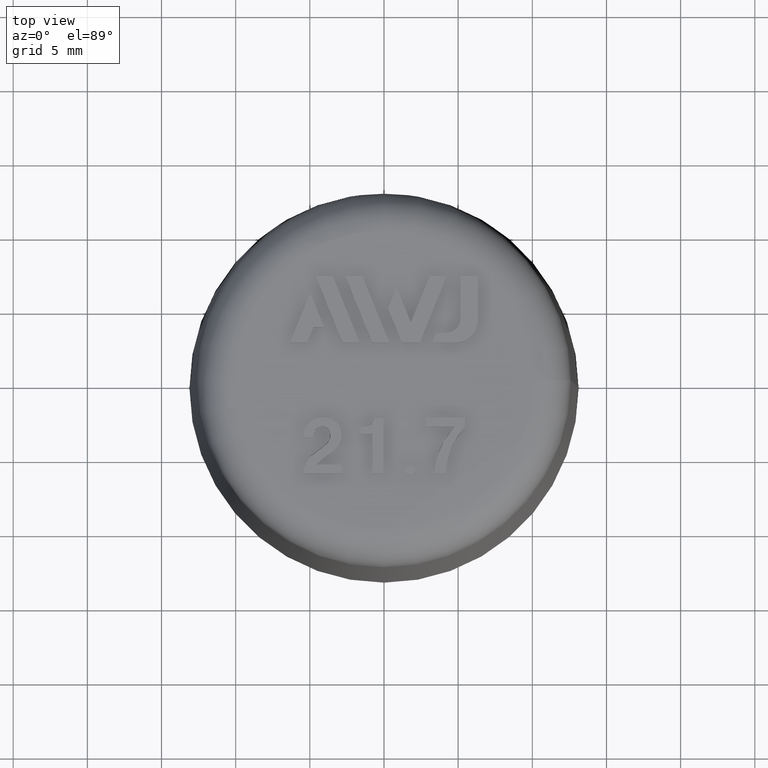
[diagram: clean part render]
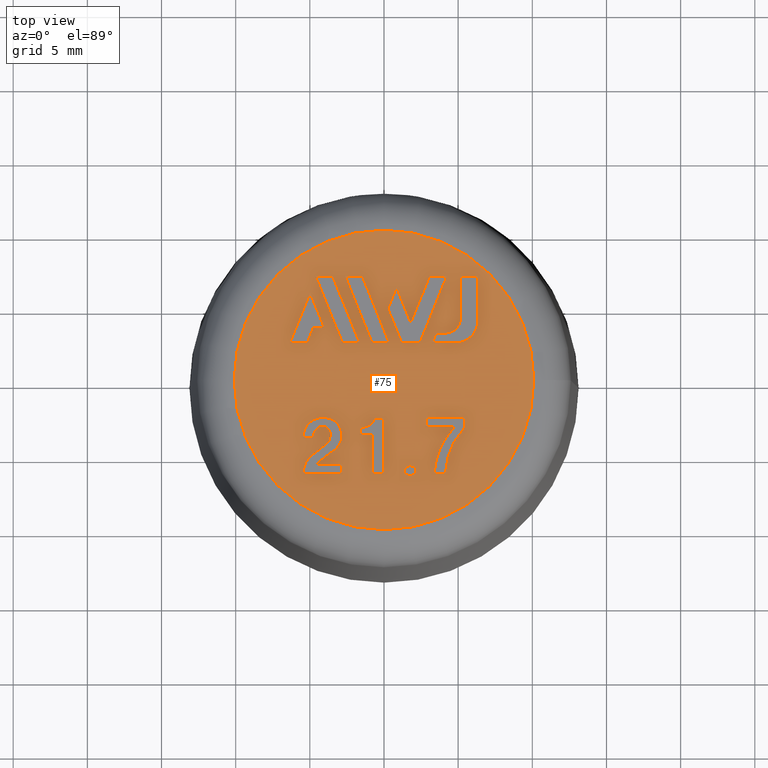
[diagram: same view with one face highlighted and labeled with its STEP entity id]
A machine part, top view. The second image highlights one B-rep face of the part: STEP entity #75.
In plain terms, the highlighted planar face has unit normal (0, 0, -1).
Its self-contained STEP definition (entity closure, byte-faithful):
#75 = ADVANCED_FACE( '', ( #141, #142, #143, #144, #145, #146, #147, #148, #149, #150 ), #151, .F. );
#141 = FACE_BOUND( '', #286, .T. );
#142 = FACE_BOUND( '', #287, .T. );
#143 = FACE_BOUND( '', #288, .T. );
#144 = FACE_BOUND( '', #289, .T. );
#145 = FACE_BOUND( '', #290, .T. );
#146 = FACE_BOUND( '', #291, .T. );
#147 = FACE_OUTER_BOUND( '', #292, .T. );
#148 = FACE_BOUND( '', #293, .T. );
#149 = FACE_BOUND( '', #294, .T. );
#150 = FACE_BOUND( '', #295, .T. );
#151 = PLANE( '', #296 );
#286 = EDGE_LOOP( '', ( #437, #438, #439, #440, #441, #442, #443 ) );
#287 = EDGE_LOOP( '', ( #444 ) );
#288 = EDGE_LOOP( '', ( #445, #446, #447, #448, #449, #450, #451 ) );
#289 = EDGE_LOOP( '', ( #452, #453, #454, #455, #456, #457 ) );
#290 = EDGE_LOOP( '', ( #458, #459, #460, #461 ) );
#291 = EDGE_LOOP( '', ( #462, #463, #464, #465, #466, #467, #468 ) );
#292 = EDGE_LOOP( '', ( #469 ) );
#293 = EDGE_LOOP( '', ( #470, #471, #472, #473, #474, #475, #476, #477 ) );
#294 = EDGE_LOOP( '', ( #478, #479, #480, #481 ) );
#295 = EDGE_LOOP( '', ( #482, #483, #484, #485, #486 ) );
#296 = AXIS2_PLACEMENT_3D( '', #487, #488, #489 );
#437 = ORIENTED_EDGE( '', *, *, #982, .T. );
#438 = ORIENTED_EDGE( '', *, *, #983, .T. );
#439 = ORIENTED_EDGE( '', *, *, #984, .T. );
#440 = ORIENTED_EDGE( '', *, *, #985, .T. );
#441 = ORIENTED_EDGE( '', *, *, #986, .T. );
#442 = ORIENTED_EDGE( '', *, *, #987, .T. );
#443 = ORIENTED_EDGE( '', *, *, #988, .T. );
#444 = ORIENTED_EDGE( '', *, *, #989, .T. );
#445 = ORIENTED_EDGE( '', *, *, #990, .T. );
#446 = ORIENTED_EDGE( '', *, *, #991, .T. );
#447 = ORIENTED_EDGE( '', *, *, #992, .T. );
#448 = ORIENTED_EDGE( '', *, *, #993, .T. );
#449 = ORIENTED_EDGE( '', *, *, #994, .T. );
#450 = ORIENTED_EDGE( '', *, *, #995, .T. );
#451 = ORIENTED_EDGE( '', *, *, #996, .T. );
#452 = ORIENTED_EDGE( '', *, *, #997, .T. );
#453 = ORIENTED_EDGE( '', *, *, #998, .T. );
#454 = ORIENTED_EDGE( '', *, *, #999, .T. );
#455 = ORIENTED_EDGE( '', *, *, #1000, .T. );
#456 = ORIENTED_EDGE( '', *, *, #1001, .T. );
#457 = ORIENTED_EDGE( '', *, *, #1002, .T. );
#458 = ORIENTED_EDGE( '', *, *, #1003, .F. );
#459 = ORIENTED_EDGE( '', *, *, #1004, .F. );
#460 = ORIENTED_EDGE( '', *, *, #1005, .F. );
#461 = ORIENTED_EDGE( '', *, *, #1006, .F. );
#462 = ORIENTED_EDGE( '', *, *, #1007, .F. );
#463 = ORIENTED_EDGE( '', *, *, #1008, .F. );
#464 = ORIENTED_EDGE( '', *, *, #1009, .F. );
#465 = ORIENTED_EDGE( '', *, *, #1010, .F. );
#466 = ORIENTED_EDGE( '', *, *, #1011, .F. );
#467 = ORIENTED_EDGE( '', *, *, #1012, .F. );
#468 = ORIENTED_EDGE( '', *, *, #1013, .F. );
#469 = ORIENTED_EDGE( '', *, *, #1014, .T. );
#470 = ORIENTED_EDGE( '', *, *, #1015, .F. );
#471 = ORIENTED_EDGE( '', *, *, #1016, .F. );
#472 = ORIENTED_EDGE( '', *, *, #1017, .F. );
#473 = ORIENTED_EDGE( '', *, *, #1018, .F. );
#474 = ORIENTED_EDGE( '', *, *, #1019, .F. );
#475 = ORIENTED_EDGE( '', *, *, #1020, .F. );
#476 = ORIENTED_EDGE( '', *, *, #1021, .F. );
#477 = ORIENTED_EDGE( '', *, *, #1022, .F. );
#478 = ORIENTED_EDGE( '', *, *, #1023, .F. );
#479 = ORIENTED_EDGE( '', *, *, #1024, .F. );
#480 = ORIENTED_EDGE( '', *, *, #1025, .F. );
#481 = ORIENTED_EDGE( '', *, *, #1026, .F. );
#482 = ORIENTED_EDGE( '', *, *, #1027, .F. );
#483 = ORIENTED_EDGE( '', *, *, #1028, .F. );
#484 = ORIENTED_EDGE( '', *, *, #1029, .F. );
#485 = ORIENTED_EDGE( '', *, *, #1030, .F. );
#486 = ORIENTED_EDGE( '', *, *, #1031, .F. );
#487 = CARTESIAN_POINT( '', ( -1.95937016611580E-015, 10.0968253945189, 32.0000000000000 ) );
#488 = DIRECTION( '', ( 6.12303176911189E-017, 0.000000000000000, -1.00000000000000 ) );
#489 = DIRECTION( '', ( -1.00000000000000, 0.000000000000000, -6.12303176911189E-017 ) );
#982 = EDGE_CURVE( '', #1134, #1135, #1136, .T. );
#983 = EDGE_CURVE( '', #1135, #1137, #1138, .T. );
#984 = EDGE_CURVE( '', #1137, #1139, #1140, .T. );
#985 = EDGE_CURVE( '', #1139, #1141, #1142, .T. );
#986 = EDGE_CURVE( '', #1141, #1143, #1144, .T. );
#987 = EDGE_CURVE( '', #1143, #1145, #1146, .T. );
#988 = EDGE_CURVE( '', #1145, #1134, #1147, .T. );
#989 = EDGE_CURVE( '', #1148, #1148, #1149, .T. );
#990 = EDGE_CURVE( '', #1150, #1151, #1152, .T. );
#991 = EDGE_CURVE( '', #1151, #1153, #1154, .T. );
#992 = EDGE_CURVE( '', #1153, #1155, #1156, .T. );
#993 = EDGE_CURVE( '', #1155, #1157, #1158, .T. );
#994 = EDGE_CURVE( '', #1157, #1159, #1160, .T. );
#995 = EDGE_CURVE( '', #1159, #1161, #1162, .T. );
#996 = EDGE_CURVE( '', #1161, #1150, #1163, .T. );
#997 = EDGE_CURVE( '', #1164, #1165, #1166, .T. );
#998 = EDGE_CURVE( '', #1165, #1167, #1168, .T. );
#999 = EDGE_CURVE( '', #1167, #1169, #1170, .T. );
#1000 = EDGE_CURVE( '', #1169, #1171, #1172, .T. );
#1001 = EDGE_CURVE( '', #1171, #1173, #1174, .T. );
#1002 = EDGE_CURVE( '', #1173, #1164, #1175, .T. );
#1003 = EDGE_CURVE( '', #1176, #1177, #1178, .T. );
#1004 = EDGE_CURVE( '', #1179, #1176, #1180, .T. );
#1005 = EDGE_CURVE( '', #1181, #1179, #1182, .T. );
#1006 = EDGE_CURVE( '', #1177, #1181, #1183, .T. );
#1007 = EDGE_CURVE( '', #1184, #1185, #1186, .T. );
#1008 = EDGE_CURVE( '', #1187, #1184, #1188, .T. );
#1009 = EDGE_CURVE( '', #1189, #1187, #1190, .T. );
#1010 = EDGE_CURVE( '', #1191, #1189, #1192, .T. );
#1011 = EDGE_CURVE( '', #1193, #1191, #1194, .T. );
#1012 = EDGE_CURVE( '', #1195, #1193, #1196, .T. );
#1013 = EDGE_CURVE( '', #1185, #1195, #1197, .T. );
#1014 = EDGE_CURVE( '', #1198, #1198, #1199, .T. );
#1015 = EDGE_CURVE( '', #1200, #1201, #1202, .T. );
#1016 = EDGE_CURVE( '', #1203, #1200, #1204, .T. );
#1017 = EDGE_CURVE( '', #1205, #1203, #1206, .T. );
#1018 = EDGE_CURVE( '', #1207, #1205, #1208, .T. );
#1019 = EDGE_CURVE( '', #1209, #1207, #1210, .T. );
#1020 = EDGE_CURVE( '', #1211, #1209, #1212, .T. );
#1021 = EDGE_CURVE( '', #1213, #1211, #1214, .T. );
#1022 = EDGE_CURVE( '', #1201, #1213, #1215, .T. );
#1023 = EDGE_CURVE( '', #1216, #1217, #1218, .T. );
#1024 = EDGE_CURVE( '', #1219, #1216, #1220, .T. );
#1025 = EDGE_CURVE( '', #1221, #1219, #1222, .T. );
#1026 = EDGE_CURVE( '', #1217, #1221, #1223, .T. );
#1027 = EDGE_CURVE( '', #1224, #1225, #1226, .T. );
#1028 = EDGE_CURVE( '', #1227, #1224, #1228, .T. );
#1029 = EDGE_CURVE( '', #1229, #1227, #1230, .T. );
#1030 = EDGE_CURVE( '', #1231, #1229, #1232, .T. );
#1031 = EDGE_CURVE( '', #1225, #1231, #1233, .T. );
#1134 = VERTEX_POINT( '', #1390 );
#1135 = VERTEX_POINT( '', #1391 );
#1136 = B_SPLINE_CURVE_WITH_KNOTS( '', 2, ( #1392, #1393, #1394 ), .UNSPECIFIED., .F., .F., ( 3, 3 ), ( 8.00000000000000, 9.00000000000000 ), .UNSPECIFIED. );
#1137 = VERTEX_POINT( '', #1395 );
#1138 = B_SPLINE_CURVE_WITH_KNOTS( '', 2, ( #1396, #1397, #1398 ), .UNSPECIFIED., .F., .F., ( 3, 3 ), ( 0.000000000000000, 1.00000000000000 ), .UNSPECIFIED. );
#1139 = VERTEX_POINT( '', #1399 );
#1140 = B_SPLINE_CURVE_WITH_KNOTS( '', 2, ( #1400, #1401, #1402 ), .UNSPECIFIED., .F., .F., ( 3, 3 ), ( 1.00000000000000, 2.00000000000000 ), .UNSPECIFIED. );
#1141 = VERTEX_POINT( '', #1403 );
#1142 = B_SPLINE_CURVE_WITH_KNOTS( '', 2, ( #1404, #1405, #1406 ), .UNSPECIFIED., .F., .F., ( 3, 3 ), ( 2.00000000000000, 3.00000000000000 ), .UNSPECIFIED. );
#1143 = VERTEX_POINT( '', #1407 );
#1144 = B_SPLINE_CURVE_WITH_KNOTS( '', 2, ( #1408, #1409, #1410, #1411, #1412 ), .UNSPECIFIED., .F., .F., ( 3, 2, 3 ), ( 3.00000000000000, 4.00000000000000, 5.00000000000000 ), .UNSPECIFIED. );
#1145 = VERTEX_POINT( '', #1413 );
#1146 = B_SPLINE_CURVE_WITH_KNOTS( '', 2, ( #1414, #1415, #1416 ), .UNSPECIFIED., .F., .F., ( 3, 3 ), ( 5.00000000000000, 6.00000000000000 ), .UNSPECIFIED. );
#1147 = B_SPLINE_CURVE_WITH_KNOTS( '', 2, ( #1417, #1418, #1419, #1420, #1421 ), .UNSPECIFIED., .F., .F., ( 3, 2, 3 ), ( 6.00000000000000, 7.00000000000000, 8.00000000000000 ), .UNSPECIFIED. );
#1148 = VERTEX_POINT( '', #1422 );
#1149 = B_SPLINE_CURVE_WITH_KNOTS( '', 2, ( #1423, #1424, #1425, #1426, #1427, #1428, #1429, #1430, #1431, #1432, #1433, #1434, #1435, #1436, #1437, #1438, #1439 ), .UNSPECIFIED., .T., .F., ( 3, 2, 2, 2, 2, 2, 2, 2, 3 ), ( 0.000000000000000, 1.00000000000000, 2.00000000000000, 3.00000000000000, 4.00000000000000, 5.00000000000000, 6.00000000000000, 7.00000000000000, 8.00000000000000 ), .UNSPECIFIED. );
#1150 = VERTEX_POINT( '', #1440 );
#1151 = VERTEX_POINT( '', #1441 );
#1152 = B_SPLINE_CURVE_WITH_KNOTS( '', 2, ( #1442, #1443, #1444 ), .UNSPECIFIED., .F., .F., ( 3, 3 ), ( 7.00000000000000, 8.00000000000000 ), .UNSPECIFIED. );
#1153 = VERTEX_POINT( '', #1445 );
#1154 = B_SPLINE_CURVE_WITH_KNOTS( '', 2, ( #1446, #1447, #1448 ), .UNSPECIFIED., .F., .F., ( 3, 3 ), ( 0.000000000000000, 1.00000000000000 ), .UNSPECIFIED. );
#1155 = VERTEX_POINT( '', #1449 );
#1156 = B_SPLINE_CURVE_WITH_KNOTS( '', 2, ( #1450, #1451, #1452, #1453, #1454 ), .UNSPECIFIED., .F., .F., ( 3, 2, 3 ), ( 1.00000000000000, 2.00000000000000, 3.00000000000000 ), .UNSPECIFIED. );
#1157 = VERTEX_POINT( '', #1455 );
#1158 = B_SPLINE_CURVE_WITH_KNOTS( '', 2, ( #1456, #1457, #1458 ), .UNSPECIFIED., .F., .F., ( 3, 3 ), ( 3.00000000000000, 4.00000000000000 ), .UNSPECIFIED. );
#1159 = VERTEX_POINT( '', #1459 );
#1160 = B_SPLINE_CURVE_WITH_KNOTS( '', 2, ( #1460, #1461, #1462 ), .UNSPECIFIED., .F., .F., ( 3, 3 ), ( 4.00000000000000, 5.00000000000000 ), .UNSPECIFIED. );
#1161 = VERTEX_POINT( '', #1463 );
#1162 = B_SPLINE_CURVE_WITH_KNOTS( '', 2, ( #1464, #1465, #1466 ), .UNSPECIFIED., .F., .F., ( 3, 3 ), ( 5.00000000000000, 6.00000000000000 ), .UNSPECIFIED. );
#1163 = B_SPLINE_CURVE_WITH_KNOTS( '', 2, ( #1467, #1468, #1469 ), .UNSPECIFIED., .F., .F., ( 3, 3 ), ( 6.00000000000000, 7.00000000000000 ), .UNSPECIFIED. );
#1164 = VERTEX_POINT( '', #1470 );
#1165 = VERTEX_POINT( '', #1471 );
#1166 = B_SPLINE_CURVE_WITH_KNOTS( '', 2, ( #1472, #1473, #1474 ), .UNSPECIFIED., .F., .F., ( 3, 3 ), ( 15.0000000000000, 16.0000000000000 ), .UNSPECIFIED. );
#1167 = VERTEX_POINT( '', #1475 );
#1168 = B_SPLINE_CURVE_WITH_KNOTS( '', 2, ( #1476, #1477, #1478, #1479, #1480, #1481, #1482, #1483, #1484, #1485, #1486, #1487, #1488 ), .UNSPECIFIED., .F., .F., ( 3, 2, 2, 2, 2, 2, 3 ), ( 0.000000000000000, 1.00000000000000, 2.00000000000000, 3.00000000000000, 4.00000000000000, 5.00000000000000, 6.00000000000000 ), .UNSPECIFIED. );
#1169 = VERTEX_POINT( '', #1489 );
#1170 = B_SPLINE_CURVE_WITH_KNOTS( '', 2, ( #1490, #1491, #1492 ), .UNSPECIFIED., .F., .F., ( 3, 3 ), ( 6.00000000000000, 7.00000000000000 ), .UNSPECIFIED. );
#1171 = VERTEX_POINT( '', #1493 );
#1172 = B_SPLINE_CURVE_WITH_KNOTS( '', 2, ( #1494, #1495, #1496 ), .UNSPECIFIED., .F., .F., ( 3, 3 ), ( 7.00000000000000, 8.00000000000000 ), .UNSPECIFIED. );
#1173 = VERTEX_POINT( '', #1497 );
#1174 = B_SPLINE_CURVE_WITH_KNOTS( '', 2, ( #1498, #1499, #1500 ), .UNSPECIFIED., .F., .F., ( 3, 3 ), ( 8.00000000000000, 9.00000000000000 ), .UNSPECIFIED. );
#1175 = B_SPLINE_CURVE_WITH_KNOTS( '', 2, ( #1501, #1502, #1503, #1504, #1505, #1506, #1507, #1508, #1509, #1510, #1511, #1512, #1513 ), .UNSPECIFIED., .F., .F., ( 3, 2, 2, 2, 2, 2, 3 ), ( 9.00000000000000, 10.0000000000000, 11.0000000000000, 12.0000000000000, 13.0000000000000, 14.0000000000000, 15.0000000000000 ), .UNSPECIFIED. );
#1176 = VERTEX_POINT( '', #1514 );
#1177 = VERTEX_POINT( '', #1515 );
#1178 = LINE( '', #1516, #1517 );
#1179 = VERTEX_POINT( '', #1518 );
#1180 = LINE( '', #1519, #1520 );
#1181 = VERTEX_POINT( '', #1521 );
#1182 = LINE( '', #1522, #1523 );
#1183 = LINE( '', #1524, #1525 );
#1184 = VERTEX_POINT( '', #1526 );
#1185 = VERTEX_POINT( '', #1527 );
#1186 = LINE( '', #1528, #1529 );
#1187 = VERTEX_POINT( '', #1530 );
#1188 = LINE( '', #1531, #1532 );
#1189 = VERTEX_POINT( '', #1533 );
#1190 = LINE( '', #1534, #1535 );
#1191 = VERTEX_POINT( '', #1536 );
#1192 = LINE( '', #1537, #1538 );
#1193 = VERTEX_POINT( '', #1539 );
#1194 = LINE( '', #1540, #1541 );
#1195 = VERTEX_POINT( '', #1542 );
#1196 = LINE( '', #1543, #1544 );
#1197 = LINE( '', #1545, #1546 );
#1198 = VERTEX_POINT( '', #1547 );
#1199 = CIRCLE( '', #1548, 10.0968253945189 );
#1200 = VERTEX_POINT( '', #1549 );
#1201 = VERTEX_POINT( '', #1550 );
#1202 = LINE( '', #1551, #1552 );
#1203 = VERTEX_POINT( '', #1553 );
#1204 = LINE( '', #1554, #1555 );
#1205 = VERTEX_POINT( '', #1556 );
#1206 = LINE( '', #1557, #1558 );
#1207 = VERTEX_POINT( '', #1559 );
#1208 = CIRCLE( '', #1560, 1.50000000000000 );
#1209 = VERTEX_POINT( '', #1561 );
#1210 = LINE( '', #1562, #1563 );
#1211 = VERTEX_POINT( '', #1564 );
#1212 = LINE( '', #1565, #1566 );
#1213 = VERTEX_POINT( '', #1567 );
#1214 = LINE( '', #1568, #1569 );
#1215 = CIRCLE( '', #1570, 1.00000000000000 );
#1216 = VERTEX_POINT( '', #1571 );
#1217 = VERTEX_POINT( '', #1572 );
#1218 = LINE( '', #1573, #1574 );
#1219 = VERTEX_POINT( '', #1575 );
#1220 = LINE( '', #1576, #1577 );
#1221 = VERTEX_POINT( '', #1578 );
#1222 = LINE( '', #1579, #1580 );
#1223 = LINE( '', #1581, #1582 );
#1224 = VERTEX_POINT( '', #1583 );
#1225 = VERTEX_POINT( '', #1584 );
#1226 = LINE( '', #1585, #1586 );
#1227 = VERTEX_POINT( '', #1587 );
#1228 = LINE( '', #1588, #1589 );
#1229 = VERTEX_POINT( '', #1590 );
#1230 = LINE( '', #1591, #1592 );
#1231 = VERTEX_POINT( '', #1593 );
#1232 = LINE( '', #1594, #1595 );
#1233 = LINE( '', #1596, #1597 );
#1390 = CARTESIAN_POINT( '', ( 4.74545454545454, -3.16226031983528, 32.0000000000000 ) );
#1391 = CARTESIAN_POINT( '', ( 2.82545454545454, -3.16226031983528, 32.0000000000000 ) );
#1392 = CARTESIAN_POINT( '', ( 4.74545454545454, -3.16226031983528, 32.0000000000000 ) );
#1393 = CARTESIAN_POINT( '', ( 3.78545454545454, -3.16226031983528, 32.0000000000000 ) );
#1394 = CARTESIAN_POINT( '', ( 2.82545454545454, -3.16226031983528, 32.0000000000000 ) );
#1395 = CARTESIAN_POINT( '', ( 2.82545454545454, -2.56226031983528, 32.0000000000000 ) );
#1396 = CARTESIAN_POINT( '', ( 2.82545454545454, -3.16226031983528, 32.0000000000000 ) );
#1397 = CARTESIAN_POINT( '', ( 2.82545454545454, -2.86226031983528, 32.0000000000000 ) );
#1398 = CARTESIAN_POINT( '', ( 2.82545454545454, -2.56226031983528, 32.0000000000000 ) );
#1399 = CARTESIAN_POINT( '', ( 5.44363636363636, -2.56226031983528, 32.0000000000000 ) );
#1400 = CARTESIAN_POINT( '', ( 2.82545454545454, -2.56226031983528, 32.0000000000000 ) );
#1401 = CARTESIAN_POINT( '', ( 4.13454545454545, -2.56226031983528, 32.0000000000000 ) );
#1402 = CARTESIAN_POINT( '', ( 5.44363636363636, -2.56226031983528, 32.0000000000000 ) );
#1403 = CARTESIAN_POINT( '', ( 5.44363636363636, -3.19862395619891, 32.0000000000000 ) );
#1404 = CARTESIAN_POINT( '', ( 5.44363636363636, -2.56226031983528, 32.0000000000000 ) );
#1405 = CARTESIAN_POINT( '', ( 5.44363636363636, -2.88044213801709, 32.0000000000000 ) );
#1406 = CARTESIAN_POINT( '', ( 5.44363636363636, -3.19862395619891, 32.0000000000000 ) );
#1407 = CARTESIAN_POINT( '', ( 4.13454545454545, -6.34407850165346, 32.0000000000000 ) );
#1408 = CARTESIAN_POINT( '', ( 5.44363636363636, -3.19862395619891, 32.0000000000000 ) );
#1409 = CARTESIAN_POINT( '', ( 4.76727272727272, -3.98044213801710, 32.0000000000000 ) );
#1410 = CARTESIAN_POINT( '', ( 4.48363636363636, -4.68953304710800, 32.0000000000000 ) );
#1411 = CARTESIAN_POINT( '', ( 4.20000000000000, -5.39862395619891, 32.0000000000000 ) );
#1412 = CARTESIAN_POINT( '', ( 4.13454545454545, -6.34407850165346, 32.0000000000000 ) );
#1413 = CARTESIAN_POINT( '', ( 3.37090909090909, -6.34407850165346, 32.0000000000000 ) );
#1414 = CARTESIAN_POINT( '', ( 4.13454545454545, -6.34407850165346, 32.0000000000000 ) );
#1415 = CARTESIAN_POINT( '', ( 3.75272727272727, -6.34407850165346, 32.0000000000000 ) );
#1416 = CARTESIAN_POINT( '', ( 3.37090909090909, -6.34407850165346, 32.0000000000000 ) );
#1417 = CARTESIAN_POINT( '', ( 3.37090909090909, -6.34407850165346, 32.0000000000000 ) );
#1418 = CARTESIAN_POINT( '', ( 3.50181818181818, -5.25316941074437, 32.0000000000000 ) );
#1419 = CARTESIAN_POINT( '', ( 3.80854440019129, -4.58102245072923, 32.0000000000000 ) );
#1420 = CARTESIAN_POINT( '', ( 4.09090909090909, -3.96226031983528, 32.0000000000000 ) );
#1421 = CARTESIAN_POINT( '', ( 4.74545454545454, -3.16226031983528, 32.0000000000000 ) );
#1422 = CARTESIAN_POINT( '', ( 1.75636363636363, -5.79862395619891, 32.0000000000000 ) );
#1423 = CARTESIAN_POINT( '', ( 1.75636363636363, -5.79862395619891, 32.0000000000000 ) );
#1424 = CARTESIAN_POINT( '', ( 1.90909090909091, -5.79862395619891, 32.0000000000000 ) );
#1425 = CARTESIAN_POINT( '', ( 2.04000000000000, -5.90771486528982, 32.0000000000000 ) );
#1426 = CARTESIAN_POINT( '', ( 2.14909090909091, -5.99862395619891, 32.0000000000000 ) );
#1427 = CARTESIAN_POINT( '', ( 2.14909090909091, -6.12589668347164, 32.0000000000000 ) );
#1428 = CARTESIAN_POINT( '', ( 2.14909090909091, -6.25316941074437, 32.0000000000000 ) );
#1429 = CARTESIAN_POINT( '', ( 2.04000000000000, -6.34407850165346, 32.0000000000000 ) );
#1430 = CARTESIAN_POINT( '', ( 1.90909090909091, -6.45316941074437, 32.0000000000000 ) );
#1431 = CARTESIAN_POINT( '', ( 1.75636363636363, -6.45316941074437, 32.0000000000000 ) );
#1432 = CARTESIAN_POINT( '', ( 1.60363636363636, -6.45316941074437, 32.0000000000000 ) );
#1433 = CARTESIAN_POINT( '', ( 1.47272727272727, -6.34407850165346, 32.0000000000000 ) );
#1434 = CARTESIAN_POINT( '', ( 1.36363636363636, -6.25316941074437, 32.0000000000000 ) );
#1435 = CARTESIAN_POINT( '', ( 1.36363636363636, -6.12589668347164, 32.0000000000000 ) );
#1436 = CARTESIAN_POINT( '', ( 1.36363636363636, -5.99862395619891, 32.0000000000000 ) );
#1437 = CARTESIAN_POINT( '', ( 1.47272727272727, -5.90771486528982, 32.0000000000000 ) );
#1438 = CARTESIAN_POINT( '', ( 1.60363636363636, -5.79862395619891, 32.0000000000000 ) );
#1439 = CARTESIAN_POINT( '', ( 1.75636363636363, -5.79862395619891, 32.0000000000000 ) );
#1440 = CARTESIAN_POINT( '', ( -0.774545454545458, -3.67135122892618, 32.0000000000000 ) );
#1441 = CARTESIAN_POINT( '', ( -1.62545454545455, -3.67135122892618, 32.0000000000000 ) );
#1442 = CARTESIAN_POINT( '', ( -0.774545454545458, -3.67135122892618, 32.0000000000000 ) );
#1443 = CARTESIAN_POINT( '', ( -1.20000000000000, -3.67135122892618, 32.0000000000000 ) );
#1444 = CARTESIAN_POINT( '', ( -1.62545454545455, -3.67135122892618, 32.0000000000000 ) );
#1445 = CARTESIAN_POINT( '', ( -1.62545454545455, -3.21680577438073, 32.0000000000000 ) );
#1446 = CARTESIAN_POINT( '', ( -1.62545454545455, -3.67135122892618, 32.0000000000000 ) );
#1447 = CARTESIAN_POINT( '', ( -1.62545454545455, -3.44407850165346, 32.0000000000000 ) );
#1448 = CARTESIAN_POINT( '', ( -1.62545454545455, -3.21680577438073, 32.0000000000000 ) );
#1449 = CARTESIAN_POINT( '', ( -0.643636363636366, -2.58044213801709, 32.0000000000000 ) );
#1450 = CARTESIAN_POINT( '', ( -1.62545454545455, -3.21680577438073, 32.0000000000000 ) );
#1451 = CARTESIAN_POINT( '', ( -1.16727272727273, -3.18044213801709, 32.0000000000000 ) );
#1452 = CARTESIAN_POINT( '', ( -0.986635753508239, -3.08259711056133, 32.0000000000000 ) );
#1453 = CARTESIAN_POINT( '', ( -0.730909090909094, -2.94407850165346, 32.0000000000000 ) );
#1454 = CARTESIAN_POINT( '', ( -0.643636363636366, -2.58044213801709, 32.0000000000000 ) );
#1455 = CARTESIAN_POINT( '', ( -0.0327272727272756, -2.58044213801709, 32.0000000000000 ) );
#1456 = CARTESIAN_POINT( '', ( -0.643636363636366, -2.58044213801709, 32.0000000000000 ) );
#1457 = CARTESIAN_POINT( '', ( -0.338181818181821, -2.58044213801709, 32.0000000000000 ) );
#1458 = CARTESIAN_POINT( '', ( -0.0327272727272756, -2.58044213801709, 32.0000000000000 ) );
#1459 = CARTESIAN_POINT( '', ( -0.0327272727272756, -6.32589668347164, 32.0000000000000 ) );
#1460 = CARTESIAN_POINT( '', ( -0.0327272727272756, -2.58044213801709, 32.0000000000000 ) );
#1461 = CARTESIAN_POINT( '', ( -0.0327272727272756, -4.45316941074437, 32.0000000000000 ) );
#1462 = CARTESIAN_POINT( '', ( -0.0327272727272756, -6.32589668347164, 32.0000000000000 ) );
#1463 = CARTESIAN_POINT( '', ( -0.774545454545458, -6.32589668347164, 32.0000000000000 ) );
#1464 = CARTESIAN_POINT( '', ( -0.0327272727272756, -6.32589668347164, 32.0000000000000 ) );
#1465 = CARTESIAN_POINT( '', ( -0.403636363636367, -6.32589668347164, 32.0000000000000 ) );
#1466 = CARTESIAN_POINT( '', ( -0.774545454545458, -6.32589668347164, 32.0000000000000 ) );
#1467 = CARTESIAN_POINT( '', ( -0.774545454545458, -6.32589668347164, 32.0000000000000 ) );
#1468 = CARTESIAN_POINT( '', ( -0.774545454545458, -4.99862395619891, 32.0000000000000 ) );
#1469 = CARTESIAN_POINT( '', ( -0.774545454545458, -3.67135122892618, 32.0000000000000 ) );
#1470 = CARTESIAN_POINT( '', ( -4.78909090909091, -3.88953304710800, 32.0000000000000 ) );
#1471 = CARTESIAN_POINT( '', ( -5.44363636363637, -3.88953304710800, 32.0000000000000 ) );
#1472 = CARTESIAN_POINT( '', ( -4.78909090909091, -3.88953304710800, 32.0000000000000 ) );
#1473 = CARTESIAN_POINT( '', ( -5.11636363636364, -3.88953304710800, 32.0000000000000 ) );
#1474 = CARTESIAN_POINT( '', ( -5.44363636363637, -3.88953304710800, 32.0000000000000 ) );
#1475 = CARTESIAN_POINT( '', ( -4.59272727272728, -5.72589668347164, 32.0000000000000 ) );
#1476 = CARTESIAN_POINT( '', ( -5.44363636363637, -3.88953304710800, 32.0000000000000 ) );
#1477 = CARTESIAN_POINT( '', ( -5.44363636363637, -3.27135122892618, 32.0000000000000 ) );
#1478 = CARTESIAN_POINT( '', ( -5.04184503827045, -2.89932222395774, 32.0000000000000 ) );
#1479 = CARTESIAN_POINT( '', ( -4.65818181818182, -2.54407850165346, 32.0000000000000 ) );
#1480 = CARTESIAN_POINT( '', ( -4.11272727272728, -2.54407850165346, 32.0000000000000 ) );
#1481 = CARTESIAN_POINT( '', ( -3.17454545454546, -2.54407850165346, 32.0000000000000 ) );
#1482 = CARTESIAN_POINT( '', ( -2.91063888252805, -3.37978264637523, 32.0000000000000 ) );
#1483 = CARTESIAN_POINT( '', ( -2.62909090909091, -4.27135122892618, 32.0000000000000 ) );
#1484 = CARTESIAN_POINT( '', ( -3.54026948374034, -4.89708342910982, 32.0000000000000 ) );
#1485 = CARTESIAN_POINT( '', ( -3.80727272727273, -5.08044213801709, 32.0000000000000 ) );
#1486 = CARTESIAN_POINT( '', ( -4.06822287683541, -5.27253044255629, 32.0000000000000 ) );
#1487 = CARTESIAN_POINT( '', ( -4.46181818181818, -5.56226031983528, 32.0000000000000 ) );
#1488 = CARTESIAN_POINT( '', ( -4.59272727272728, -5.72589668347164, 32.0000000000000 ) );
#1489 = CARTESIAN_POINT( '', ( -2.82545454545455, -5.72589668347164, 32.0000000000000 ) );
#1490 = CARTESIAN_POINT( '', ( -4.59272727272728, -5.72589668347164, 32.0000000000000 ) );
#1491 = CARTESIAN_POINT( '', ( -3.70909090909091, -5.72589668347164, 32.0000000000000 ) );
#1492 = CARTESIAN_POINT( '', ( -2.82545454545455, -5.72589668347164, 32.0000000000000 ) );
#1493 = CARTESIAN_POINT( '', ( -2.82545454545455, -6.32589668347164, 32.0000000000000 ) );
#1494 = CARTESIAN_POINT( '', ( -2.82545454545455, -5.72589668347164, 32.0000000000000 ) );
#1495 = CARTESIAN_POINT( '', ( -2.82545454545455, -6.02589668347164, 32.0000000000000 ) );
#1496 = CARTESIAN_POINT( '', ( -2.82545454545455, -6.32589668347164, 32.0000000000000 ) );
#1497 = CARTESIAN_POINT( '', ( -5.44363636363637, -6.32589668347164, 32.0000000000000 ) );
#1498 = CARTESIAN_POINT( '', ( -2.82545454545455, -6.32589668347164, 32.0000000000000 ) );
#1499 = CARTESIAN_POINT( '', ( -4.13454545454546, -6.32589668347164, 32.0000000000000 ) );
#1500 = CARTESIAN_POINT( '', ( -5.44363636363637, -6.32589668347164, 32.0000000000000 ) );
#1501 = CARTESIAN_POINT( '', ( -5.44363636363637, -6.32589668347164, 32.0000000000000 ) );
#1502 = CARTESIAN_POINT( '', ( -5.46545454545455, -5.48953304710800, 32.0000000000000 ) );
#1503 = CARTESIAN_POINT( '', ( -4.63536834189471, -4.89091318877158, 32.0000000000000 ) );
#1504 = CARTESIAN_POINT( '', ( -4.33090909090909, -4.67135122892618, 32.0000000000000 ) );
#1505 = CARTESIAN_POINT( '', ( -4.02681802687711, -4.45128532732409, 32.0000000000000 ) );
#1506 = CARTESIAN_POINT( '', ( -3.50181818181819, -4.07135122892618, 32.0000000000000 ) );
#1507 = CARTESIAN_POINT( '', ( -3.62856884919277, -3.56669579400885, 32.0000000000000 ) );
#1508 = CARTESIAN_POINT( '', ( -3.69818181818182, -3.28953304710800, 32.0000000000000 ) );
#1509 = CARTESIAN_POINT( '', ( -3.93616535036129, -3.17620755559397, 32.0000000000000 ) );
#1510 = CARTESIAN_POINT( '', ( -4.15636363636364, -3.07135122892618, 32.0000000000000 ) );
#1511 = CARTESIAN_POINT( '', ( -4.41737977743370, -3.20024808871387, 32.0000000000000 ) );
#1512 = CARTESIAN_POINT( '', ( -4.74545454545455, -3.36226031983528, 32.0000000000000 ) );
#1513 = CARTESIAN_POINT( '', ( -4.78909090909091, -3.88953304710800, 32.0000000000000 ) );
#1514 = CARTESIAN_POINT( '', ( -1.64262150000000, 2.50137604380109, 32.0000000000000 ) );
#1515 = CARTESIAN_POINT( '', ( -3.45960400000000, 6.99808404380110, 32.0000000000000 ) );
#1516 = CARTESIAN_POINT( '', ( -1.64262150000000, 2.50137604380109, 32.0000000000000 ) );
#1517 = VECTOR( '', #1910, 1000.00000000000 );
#1518 = CARTESIAN_POINT( '', ( -2.80451850000000, 2.50137604380109, 32.0000000000000 ) );
#1519 = CARTESIAN_POINT( '', ( -2.80451850000000, 2.50137604380109, 32.0000000000000 ) );
#1520 = VECTOR( '', #1911, 1000.00000000000 );
#1521 = CARTESIAN_POINT( '', ( -4.62124550000000, 6.99808404380110, 32.0000000000000 ) );
#1522 = CARTESIAN_POINT( '', ( -4.62124550000000, 6.99808404380110, 32.0000000000000 ) );
#1523 = VECTOR( '', #1912, 1000.00000000000 );
#1524 = CARTESIAN_POINT( '', ( -3.45960400000000, 6.99808404380110, 32.0000000000000 ) );
#1525 = VECTOR( '', #1913, 1000.00000000000 );
#1526 = CARTESIAN_POINT( '', ( 4.23659400000000, 6.99808404380110, 32.0000000000000 ) );
#1527 = CARTESIAN_POINT( '', ( 3.07459900000000, 6.99808404380110, 32.0000000000000 ) );
#1528 = CARTESIAN_POINT( '', ( 4.23659400000000, 6.99808404380110, 32.0000000000000 ) );
#1529 = VECTOR( '', #1914, 1000.00000000000 );
#1530 = CARTESIAN_POINT( '', ( 2.41989699999999, 2.50137604380109, 32.0000000000000 ) );
#1531 = CARTESIAN_POINT( '', ( 2.41989699999999, 2.50137604380109, 32.0000000000000 ) );
#1532 = VECTOR( '', #1915, 1000.00000000000 );
#1533 = CARTESIAN_POINT( '', ( 1.19156050000000, 2.50137604380109, 32.0000000000000 ) );
#1534 = CARTESIAN_POINT( '', ( 1.19156050000000, 2.50137604380109, 32.0000000000000 ) );
#1535 = VECTOR( '', #1916, 1000.00000000000 );
#1536 = CARTESIAN_POINT( '', ( 0.265796499999999, 4.79232254380110, 32.0000000000000 ) );
#1537 = CARTESIAN_POINT( '', ( 0.265796500000003, 4.79232254380110, 32.0000000000000 ) );
#1538 = VECTOR( '', #1917, 1000.00000000000 );
#1539 = CARTESIAN_POINT( '', ( 0.846794000000002, 6.23059354380110, 32.0000000000000 ) );
#1540 = CARTESIAN_POINT( '', ( 0.846793999999997, 6.23059354380110, 32.0000000000000 ) );
#1541 = VECTOR( '', #1918, 1000.00000000000 );
#1542 = CARTESIAN_POINT( '', ( 1.80560100000000, 3.85757254380110, 32.0000000000000 ) );
#1543 = CARTESIAN_POINT( '', ( 1.80560100000000, 3.85757254380110, 32.0000000000000 ) );
#1544 = VECTOR( '', #1919, 1000.00000000000 );
#1545 = CARTESIAN_POINT( '', ( 3.07459900000000, 6.99808404380110, 32.0000000000000 ) );
#1546 = VECTOR( '', #1920, 1000.00000000000 );
#1547 = CARTESIAN_POINT( '', ( 10.0968253945189, 0.000000000000000, 32.0000000000000 ) );
#1548 = AXIS2_PLACEMENT_3D( '', #1921, #1922, #1923 );
#1549 = CARTESIAN_POINT( '', ( 5.15890199999999, 6.99808404380110, 32.0000000000000 ) );
#1550 = CARTESIAN_POINT( '', ( 5.15890200000000, 4.15528254380110, 32.0000000000000 ) );
#1551 = CARTESIAN_POINT( '', ( 5.15890199999999, 6.99808404380110, 32.0000000000000 ) );
#1552 = VECTOR( '', #1924, 1000.00000000000 );
#1553 = CARTESIAN_POINT( '', ( 6.33407500000000, 6.99808404380110, 32.0000000000000 ) );
#1554 = CARTESIAN_POINT( '', ( 6.33407500000000, 6.99808404380110, 32.0000000000000 ) );
#1555 = VECTOR( '', #1925, 1000.00000000000 );
#1556 = CARTESIAN_POINT( '', ( 6.33407500000000, 4.00137604380109, 32.0000000000000 ) );
#1557 = CARTESIAN_POINT( '', ( 6.33407500000000, 4.00137604380109, 32.0000000000000 ) );
#1558 = VECTOR( '', #1926, 1000.00000000000 );
#1559 = CARTESIAN_POINT( '', ( 4.83407500000000, 2.50137604380109, 32.0000000000000 ) );
#1560 = AXIS2_PLACEMENT_3D( '', #1927, #1928, #1929 );
#1561 = CARTESIAN_POINT( '', ( 3.25598350000000, 2.50137604380109, 32.0000000000000 ) );
#1562 = CARTESIAN_POINT( '', ( 3.25598350000000, 2.50137604380109, 32.0000000000000 ) );
#1563 = VECTOR( '', #1930, 1000.00000000000 );
#1564 = CARTESIAN_POINT( '', ( 3.52017850000000, 3.15528254380110, 32.0000000000000 ) );
#1565 = CARTESIAN_POINT( '', ( 3.52017850000000, 3.15528254380110, 32.0000000000000 ) );
#1566 = VECTOR( '', #1931, 1000.00000000000 );
#1567 = CARTESIAN_POINT( '', ( 4.15890200000000, 3.15528254380110, 32.0000000000000 ) );
#1568 = CARTESIAN_POINT( '', ( 4.15890200000000, 3.15528254380110, 32.0000000000000 ) );
#1569 = VECTOR( '', #1932, 1000.00000000000 );
#1570 = AXIS2_PLACEMENT_3D( '', #1933, #1934, #1935 );
#1571 = CARTESIAN_POINT( '', ( 0.355474499999999, 2.50137604380109, 32.0000000000000 ) );
#1572 = CARTESIAN_POINT( '', ( -1.46150800000000, 6.99808404380110, 32.0000000000000 ) );
#1573 = CARTESIAN_POINT( '', ( 0.355474499999999, 2.50137604380109, 32.0000000000000 ) );
#1574 = VECTOR( '', #1936, 1000.00000000000 );
#1575 = CARTESIAN_POINT( '', ( -0.806505500000007, 2.50137604380109, 32.0000000000000 ) );
#1576 = CARTESIAN_POINT( '', ( -0.806505500000001, 2.50137604380109, 32.0000000000000 ) );
#1577 = VECTOR( '', #1937, 1000.00000000000 );
#1578 = CARTESIAN_POINT( '', ( -2.62348750000000, 6.99808404380110, 32.0000000000000 ) );
#1579 = CARTESIAN_POINT( '', ( -2.62348750000000, 6.99808404380110, 32.0000000000000 ) );
#1580 = VECTOR( '', #1938, 1000.00000000000 );
#1581 = CARTESIAN_POINT( '', ( -1.46150800000000, 6.99808404380110, 32.0000000000000 ) );
#1582 = VECTOR( '', #1939, 1000.00000000000 );
#1583 = CARTESIAN_POINT( '', ( -6.33864000000001, 2.50137604380109, 32.0000000000000 ) );
#1584 = CARTESIAN_POINT( '', ( -5.17699850000000, 2.50137604380109, 32.0000000000000 ) );
#1585 = CARTESIAN_POINT( '', ( -6.33864000000001, 2.50137604380109, 32.0000000000000 ) );
#1586 = VECTOR( '', #1940, 1000.00000000000 );
#1587 = CARTESIAN_POINT( '', ( -4.97663600000000, 5.87288904380109, 32.0000000000000 ) );
#1588 = CARTESIAN_POINT( '', ( -4.97663600000001, 5.87288904380109, 32.0000000000000 ) );
#1589 = VECTOR( '', #1941, 1000.00000000000 );
#1590 = CARTESIAN_POINT( '', ( -4.03450050000000, 3.53994404380109, 32.0000000000000 ) );
#1591 = CARTESIAN_POINT( '', ( -4.03450050000000, 3.53994404380109, 32.0000000000000 ) );
#1592 = VECTOR( '', #1942, 1000.00000000000 );
#1593 = CARTESIAN_POINT( '', ( -4.75708450000000, 3.53994404380109, 32.0000000000000 ) );
#1594 = CARTESIAN_POINT( '', ( -4.75708450000000, 3.53994404380109, 32.0000000000000 ) );
#1595 = VECTOR( '', #1943, 1000.00000000000 );
#1596 = CARTESIAN_POINT( '', ( -5.17699850000000, 2.50137604380109, 32.0000000000000 ) );
#1597 = VECTOR( '', #1944, 1000.00000000000 );
#1910 = DIRECTION( '', ( -0.374641075834904, 0.927169922019295, -6.88181762805413E-017 ) );
#1911 = DIRECTION( '', ( 1.00000000000000, -6.12303176911189E-017, 1.83690953073357E-016 ) );
#1912 = DIRECTION( '', ( 0.374595787424495, -0.927188220397468, 6.88098572092699E-017 ) );
#1913 = DIRECTION( '', ( -1.00000000000000, 6.12303176911189E-017, -1.83690953073357E-016 ) );
#1914 = DIRECTION( '', ( -1.00000000000000, 6.69494841509799E-017, -1.83690953073357E-016 ) );
#1915 = DIRECTION( '', ( 0.374590469627020, 0.927190368837278, 6.88088803779836E-017 ) );
#1916 = DIRECTION( '', ( 1.00000000000000, -1.14383329197221E-017, 1.83690953073357E-016 ) );
#1917 = DIRECTION( '', ( 0.374662791989133, -0.927161146888127, 6.88221653416087E-017 ) );
#1918 = DIRECTION( '', ( -0.374550228315492, -0.927206625552694, -6.88014884131161E-017 ) );
#1919 = DIRECTION( '', ( -0.374621466961798, 0.927177845125405, -6.88145743079517E-017 ) );
#1920 = DIRECTION( '', ( -0.374644407000048, -0.927168575990139, -6.88187881854414E-017 ) );
#1921 = CARTESIAN_POINT( '', ( -1.95937016611580E-015, 0.000000000000000, 32.0000000000000 ) );
#1922 = DIRECTION( '', ( -6.12303176911189E-017, 0.000000000000000, 1.00000000000000 ) );
#1923 = DIRECTION( '', ( 1.00000000000000, 0.000000000000000, 6.12303176911189E-017 ) );
#1924 = DIRECTION( '', ( -6.69494841509799E-017, -1.00000000000000, -4.79971094235239E-033 ) );
#1925 = DIRECTION( '', ( -1.00000000000000, 6.69494841509799E-017, -1.83690953073357E-016 ) );
#1926 = DIRECTION( '', ( 6.69494841509799E-017, 1.00000000000000, 4.79971094235239E-033 ) );
#1927 = CARTESIAN_POINT( '', ( 4.83407500000000, 4.00137604380109, 32.0000000000000 ) );
#1928 = DIRECTION( '', ( -6.12303176911189E-017, 0.000000000000000, 1.00000000000000 ) );
#1929 = DIRECTION( '', ( 1.00000000000000, -3.22658566531689E-016, 6.12303176911189E-017 ) );
#1930 = DIRECTION( '', ( 1.00000000000000, -6.69494841509798E-017, 1.83690953073357E-016 ) );
#1931 = DIRECTION( '', ( -0.374606136016172, -0.927184039368147, -6.88117581519382E-017 ) );
#1932 = DIRECTION( '', ( -1.00000000000000, 6.69494841509799E-017, -1.83690953073357E-016 ) );
#1933 = CARTESIAN_POINT( '', ( 4.15890200000000, 4.15528254380110, 32.0000000000000 ) );
#1934 = DIRECTION( '', ( 6.12303176911189E-017, -2.73691106313441E-048, -1.00000000000000 ) );
#1935 = DIRECTION( '', ( 1.00000000000000, -3.22658566531689E-016, 6.12303176911189E-017 ) );
#1936 = DIRECTION( '', ( -0.374641075834904, 0.927169922019295, -6.88181762805413E-017 ) );
#1937 = DIRECTION( '', ( 1.00000000000000, -6.12303176911189E-017, 1.83690953073357E-016 ) );
#1938 = DIRECTION( '', ( 0.374640987210496, -0.927169957829710, 6.88181600010391E-017 ) );
#1939 = DIRECTION( '', ( -1.00000000000000, 6.12303176911189E-017, -1.83690953073357E-016 ) );
#1940 = DIRECTION( '', ( 1.00000000000000, -6.69494841509798E-017, 1.83690953073357E-016 ) );
#1941 = DIRECTION( '', ( -0.374565060835224, -0.927200633736574, -6.88042130128021E-017 ) );
#1942 = DIRECTION( '', ( -0.374457798873769, 0.927243957576760, -6.87845099608738E-017 ) );
#1943 = DIRECTION( '', ( 1.00000000000000, -1.14383329197221E-017, 1.83690953073357E-016 ) );
#1944 = DIRECTION( '', ( 0.374840859640758, 0.927089170438194, 6.88548747582471E-017 ) );